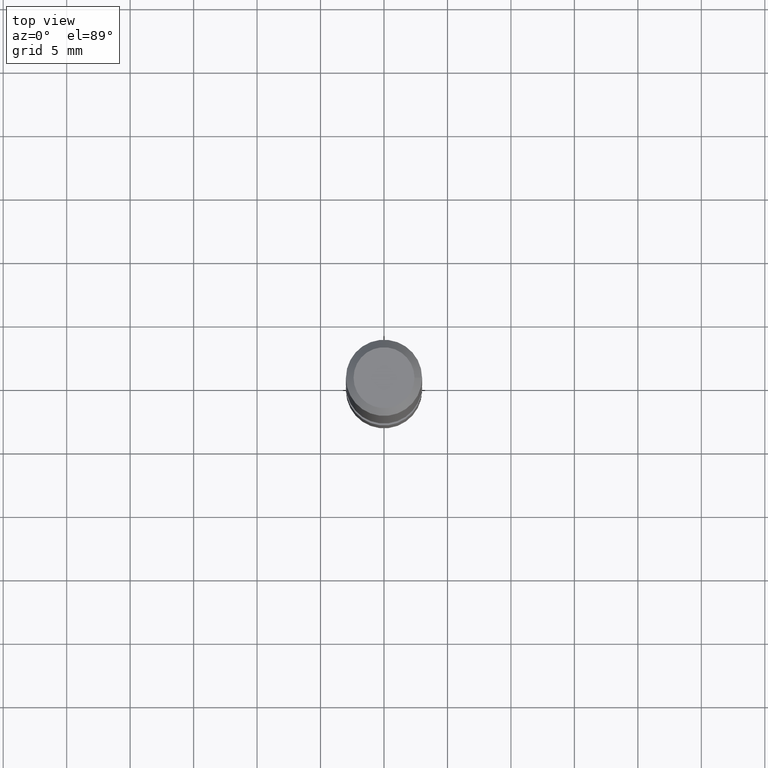
[diagram: clean part render]
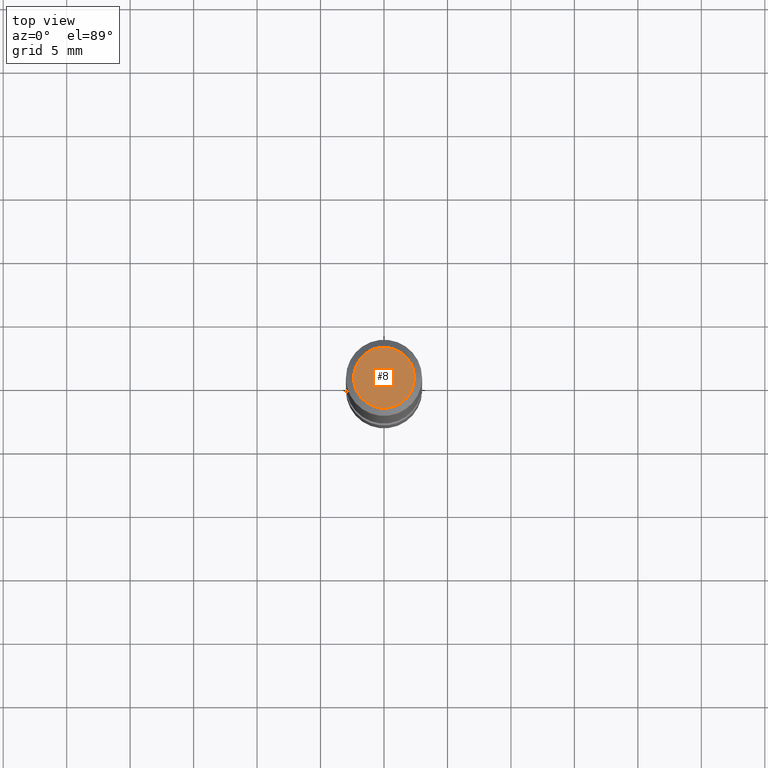
[diagram: same view with one face highlighted and labeled with its STEP entity id]
A machine part, top view. The second image highlights one B-rep face of the part: STEP entity #8.
In plain terms, the highlighted planar face has unit normal (0, 0, 1).
Its self-contained STEP definition (entity closure, byte-faithful):
#2 = ORIENTED_EDGE ( 'NONE', *, *, #177, .T. ) ;
#8 = ADVANCED_FACE ( 'NONE', ( #46 ), #149, .T. ) ;
#21 = VERTEX_POINT ( 'NONE', #196 ) ;
#26 = AXIS2_PLACEMENT_3D ( 'NONE', #125, #127, #281 ) ;
#46 = FACE_OUTER_BOUND ( 'NONE', #248, .T. ) ;
#70 = CIRCLE ( 'NONE', #264, 2.399999999999998135 ) ;
#78 = DIRECTION ( 'NONE',  ( 6.982962677686266711E-15, 0.0000000000000000000, 1.000000000000000000 ) ) ;
#125 = CARTESIAN_POINT ( 'NONE',  ( -7.525997073249809467E-31, 0.0000000000000000000, -1.077765616204535070E-16 ) ) ;
#127 = DIRECTION ( 'NONE',  ( 6.982962677686266711E-15, 0.0000000000000000000, 1.000000000000000000 ) ) ;
#149 = PLANE ( 'NONE',  #26 ) ;
#177 = EDGE_CURVE ( 'NONE', #21, #21, #70, .T. ) ;
#185 = DIRECTION ( 'NONE',  ( 1.000000000000000000, 0.0000000000000000000, -6.982962677686266711E-15 ) ) ;
#196 = CARTESIAN_POINT ( 'NONE',  ( 2.399999999999998135, 0.0000000000000000000, -1.675911042644702748E-14 ) ) ;
#248 = EDGE_LOOP ( 'NONE', ( #2 ) ) ;
#252 = CARTESIAN_POINT ( 'NONE',  ( 0.0000000000000000000, 0.0000000000000000000, 0.0000000000000000000 ) ) ;
#264 = AXIS2_PLACEMENT_3D ( 'NONE', #252, #78, #185 ) ;
#281 = DIRECTION ( 'NONE',  ( 1.000000000000000000, 0.0000000000000000000, -6.982962677686266711E-15 ) ) ;